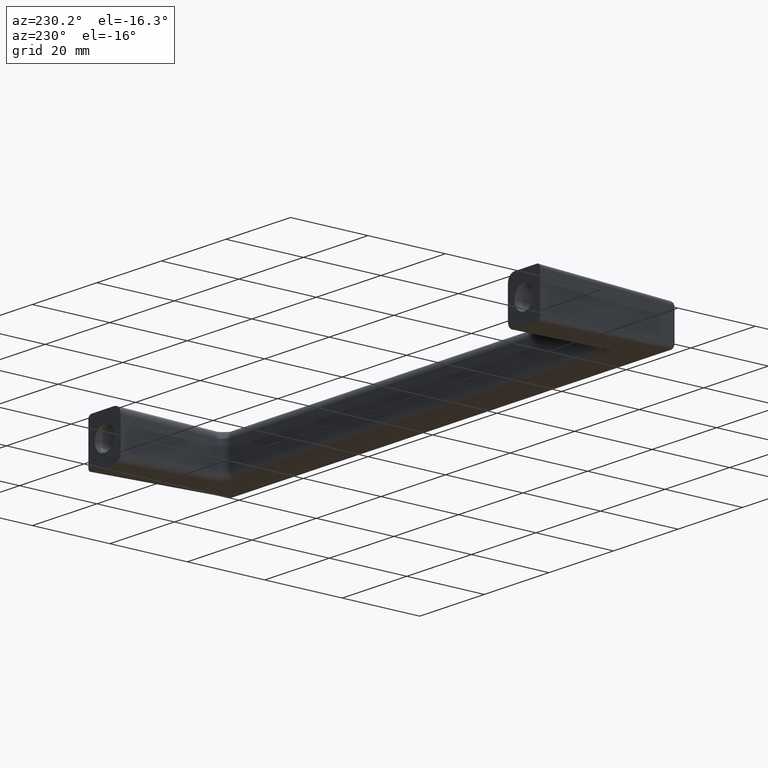
[diagram: clean part render]
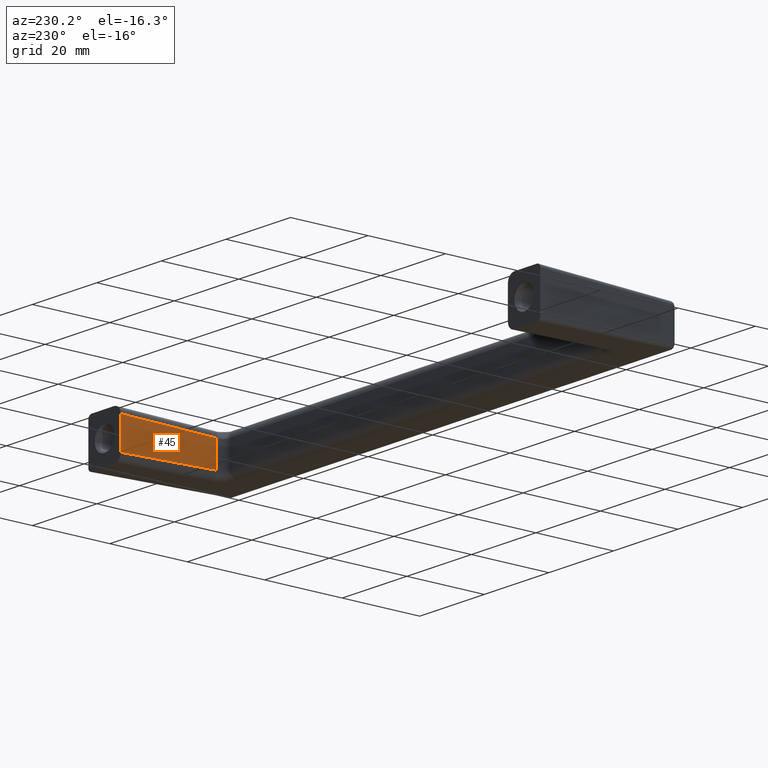
[diagram: same view with one face highlighted and labeled with its STEP entity id]
A machine part, auxiliary view. The second image highlights one B-rep face of the part: STEP entity #45.
In plain terms, the highlighted planar face has unit normal (0.9996, -0.0278, 0).
Its self-contained STEP definition (entity closure, byte-faithful):
#45=ADVANCED_FACE('',(#136),#135,.F.);
#135=PLANE('',#555);
#136=FACE_OUTER_BOUND('',#556,.T.);
#552=CARTESIAN_POINT('',(5.92637763914E+001,-1.59094345719E+001,5.23247629540E+000));
#553=DIRECTION('',(9.99613590208E-001,-2.77969471431E-002,0.00000000000E+000));
#554=DIRECTION('',(2.77969471431E-002,9.99613590208E-001,0.00000000000E+000));
#555=AXIS2_PLACEMENT_3D('',#552,#553,#554);
#556=EDGE_LOOP('',(#1013,#1014,#1015,#1016));
#1013=ORIENTED_EDGE('',*,*,#1293,.T.);
#1014=ORIENTED_EDGE('',*,*,#1294,.T.);
#1015=ORIENTED_EDGE('',*,*,#1273,.T.);
#1016=ORIENTED_EDGE('',*,*,#1295,.T.);
#1273=EDGE_CURVE('',#1534,#1527,#1535,.T.);
#1293=EDGE_CURVE('',#1673,#1674,#1675,.T.);
#1294=EDGE_CURVE('',#1674,#1534,#1681,.T.);
#1295=EDGE_CURVE('',#1527,#1673,#1687,.T.);
#1527=VERTEX_POINT('',#2453);
#1534=VERTEX_POINT('',#2463);
#1535=LINE('',#2464,#2465);
#1673=VERTEX_POINT('',#2576);
#1674=VERTEX_POINT('',#2577);
#1675=LINE('',#2578,#2579);
#1681=LINE('',#2581,#2582);
#1687=LINE('',#2584,#2585);
#2453=CARTESIAN_POINT('',(5.99996000000E+001,1.05517187119E+001,6.03201314921E+000));
#2463=CARTESIAN_POINT('',(5.99996000000E+001,1.05517187119E+001,1.40273816872E+001));
#2464=CARTESIAN_POINT('',(5.99996000000E+001,1.05517187119E+001,1.40273816872E+001));
#2465=VECTOR('',#2466,7.99536853801E+000);
#2466=DIRECTION('',(0.00000000000E+000,0.00000000000E+000,-1.00000000000E+000));
#2576=CARTESIAN_POINT('',(5.93306694467E+001,-1.35038751824E+001,6.70022409071E+000));
#2577=CARTESIAN_POINT('',(5.93306694467E+001,-1.35038751824E+001,1.33591707457E+001));
#2578=CARTESIAN_POINT('',(5.93306694467E+001,-1.35038751824E+001,6.70022409071E+000));
#2579=VECTOR('',#2580,6.65894665500E+000);
#2580=DIRECTION('',(0.00000000000E+000,0.00000000000E+000,1.00000000000E+000));
#2581=CARTESIAN_POINT('',(5.93306694467E+001,-1.35038751824E+001,1.33591707457E+001));
#2582=VECTOR('',#2583,2.40741681384E+001);
#2583=DIRECTION('',(2.77862374910E-002,9.99228457491E-001,2.77563460414E-002));
#2584=CARTESIAN_POINT('',(5.99996000000E+001,1.05517187119E+001,6.03201314921E+000));
#2585=VECTOR('',#2586,2.40741681384E+001);
#2586=DIRECTION('',(-2.77862374910E-002,-9.99228457491E-001,2.77563460414E-002));